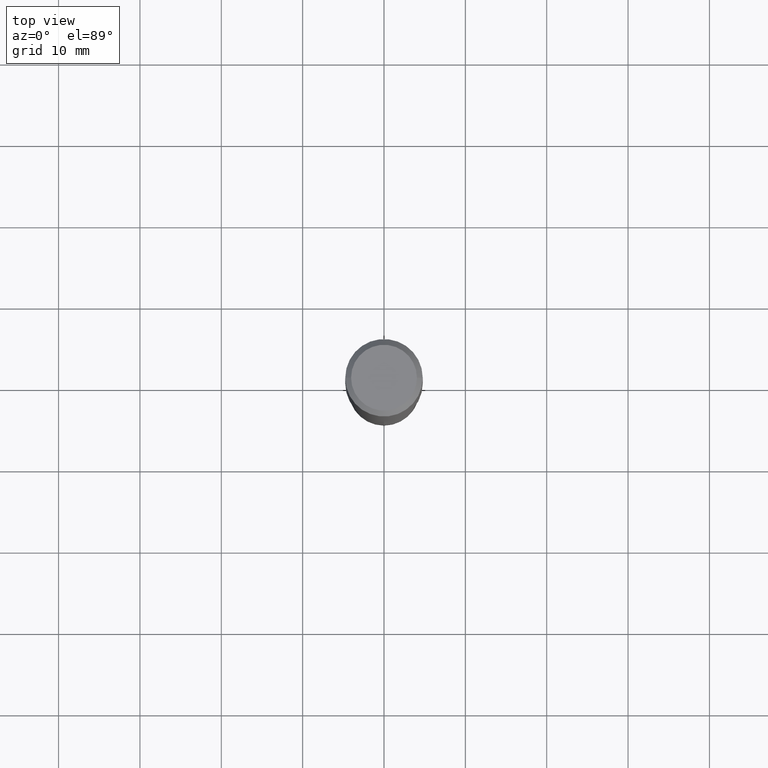
[diagram: clean part render]
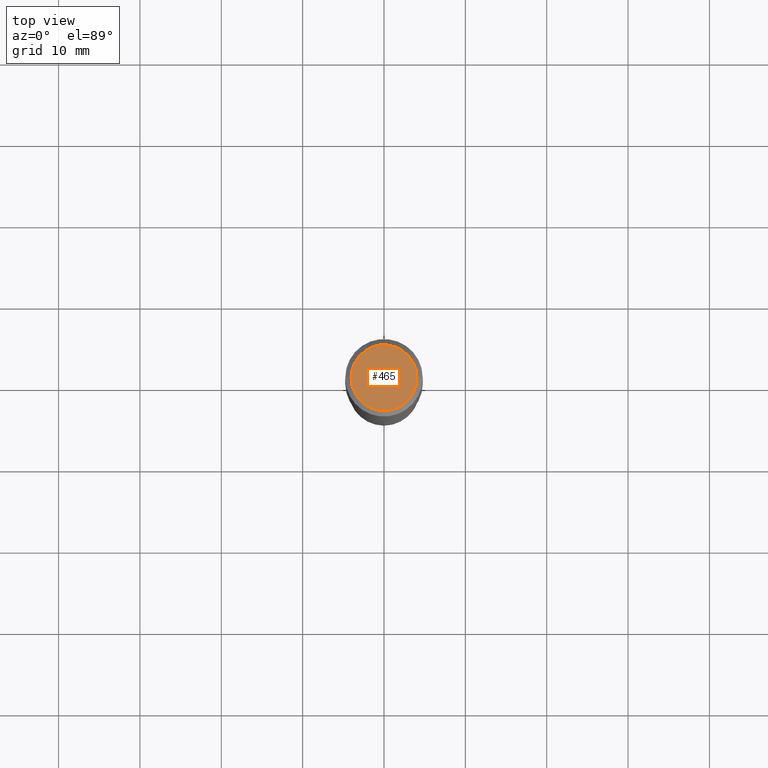
[diagram: same view with one face highlighted and labeled with its STEP entity id]
A machine part, top view. The second image highlights one B-rep face of the part: STEP entity #465.
In plain terms, the highlighted planar face has unit normal (0, -0, -1).
Its self-contained STEP definition (entity closure, byte-faithful):
#5 = EDGE_CURVE ( 'NONE', #373, #438, #266, .T. ) ;
#23 = PLANE ( 'NONE',  #38 ) ;
#33 = DIRECTION ( 'NONE',  ( 2.438088387897960049E-29, -3.491481338843145188E-15, -1.000000000000000000 ) ) ;
#38 = AXIS2_PLACEMENT_3D ( 'NONE', #254, #33, #448 ) ;
#40 = DIRECTION ( 'NONE',  ( 1.000000000000000000, -6.982962677686267499E-15, 4.876227444496879000E-29 ) ) ;
#78 = DIRECTION ( 'NONE',  ( -2.445468806185136597E-29, 3.491481338843145583E-15, 1.000000000000000000 ) ) ;
#103 = ORIENTED_EDGE ( 'NONE', *, *, #5, .T. ) ;
#108 = FACE_OUTER_BOUND ( 'NONE', #202, .T. ) ;
#120 = CARTESIAN_POINT ( 'NONE',  ( -7.955031918821655674E-47, 1.135767727816384611E-32, 3.252968060235159768E-18 ) ) ;
#136 = CARTESIAN_POINT ( 'NONE',  ( -0.1593749999999999889, 1.162008633083729827E-15, 3.252968060227205293E-18 ) ) ;
#185 = EDGE_CURVE ( 'NONE', #438, #373, #320, .T. ) ;
#202 = EDGE_LOOP ( 'NONE', ( #211, #103 ) ) ;
#211 = ORIENTED_EDGE ( 'NONE', *, *, #185, .T. ) ;
#222 = DIRECTION ( 'NONE',  ( -2.445468806185136597E-29, 3.491481338843145583E-15, 1.000000000000000000 ) ) ;
#224 = DIRECTION ( 'NONE',  ( 1.000000000000000000, -6.982962677686267499E-15, 4.876227444496879000E-29 ) ) ;
#254 = CARTESIAN_POINT ( 'NONE',  ( -3.977515959410827837E-47, 5.678838639081923055E-33, 1.626484030117579884E-18 ) ) ;
#256 = CARTESIAN_POINT ( 'NONE',  ( -7.955031918821655674E-47, 1.135767727816384611E-32, 3.252968060235159768E-18 ) ) ;
#266 = CIRCLE ( 'NONE', #361, 0.1593749999999999889 ) ;
#320 = CIRCLE ( 'NONE', #478, 0.1593749999999999889 ) ;
#357 = CARTESIAN_POINT ( 'NONE',  ( 0.1593749999999999889, -1.238966577815982495E-15, 3.252968060243383104E-18 ) ) ;
#361 = AXIS2_PLACEMENT_3D ( 'NONE', #256, #222, #224 ) ;
#373 = VERTEX_POINT ( 'NONE', #357 ) ;
#438 = VERTEX_POINT ( 'NONE', #136 ) ;
#448 = DIRECTION ( 'NONE',  ( -1.000000000000000000, 6.982962677686265922E-15, -4.876176775795935793E-29 ) ) ;
#465 = ADVANCED_FACE ( 'NONE', ( #108 ), #23, .F. ) ;
#478 = AXIS2_PLACEMENT_3D ( 'NONE', #120, #78, #40 ) ;